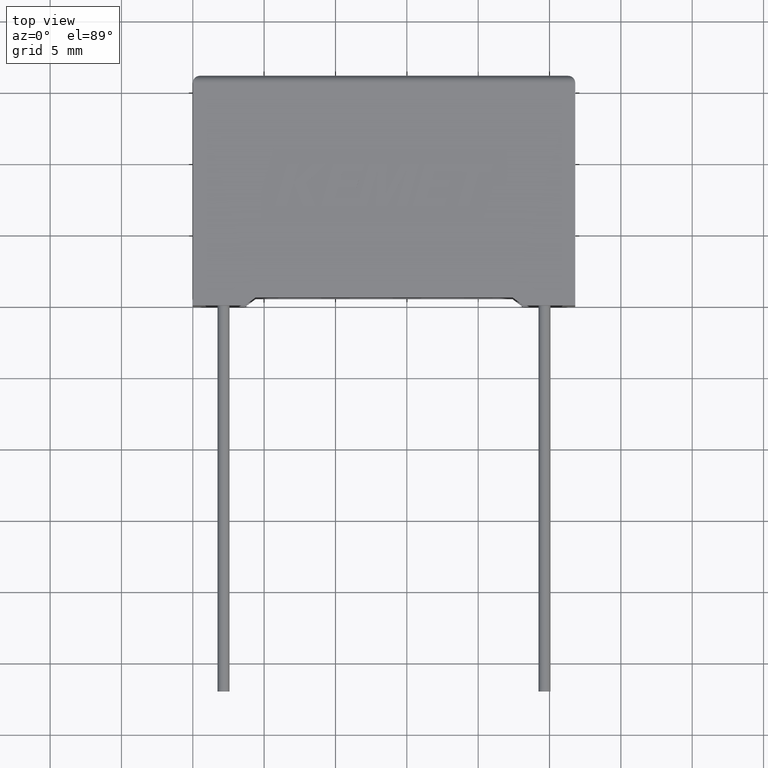
[diagram: clean part render]
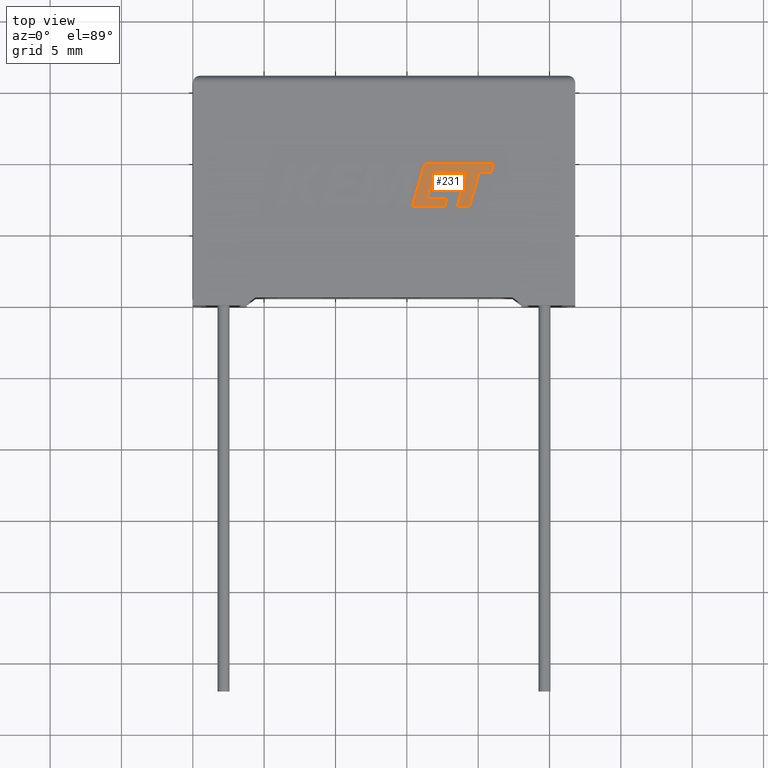
[diagram: same view with one face highlighted and labeled with its STEP entity id]
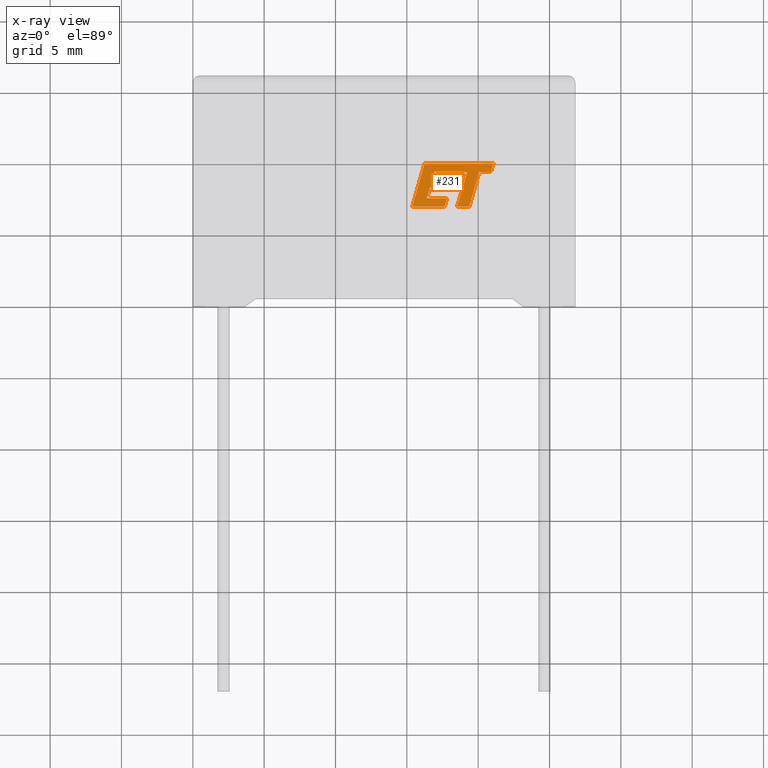
[diagram: x-ray of the same camera — body ghosted, the highlighted face saturated]
A machine part, top view. The second image highlights one B-rep face of the part: STEP entity #231.
The next image is the same camera in x-ray: the body ghosted, the highlighted face saturated — about 0% of this face is hidden behind the body in this view.
In plain terms, the highlighted planar face has unit normal (0, 0, 1).
Its self-contained STEP definition (entity closure, byte-faithful):
#11 = DIRECTION ( 'NONE',  ( 0.2746918797667270400, 0.9615323037684286900, 0.0000000000000000000 ) ) ;
#12 = ORIENTED_EDGE ( 'NONE', *, *, #1254, .T. ) ;
#34 = VECTOR ( 'NONE', #631, 1000.000000000000100 ) ;
#111 = LINE ( 'NONE', #1845, #2291 ) ;
#112 = VERTEX_POINT ( 'NONE', #1918 ) ;
#122 = EDGE_CURVE ( 'NONE', #112, #710, #2945, .T. ) ;
#148 = ORIENTED_EDGE ( 'NONE', *, *, #2126, .T. ) ;
#152 = CARTESIAN_POINT ( 'NONE',  ( 20.07720000853358400, 9.350058697634773700, 7.204999999999999200 ) ) ;
#169 = CARTESIAN_POINT ( 'NONE',  ( 17.65131123836012600, 6.927829999999908700, 7.204999999999999200 ) ) ;
#172 = FACE_OUTER_BOUND ( 'NONE', #2334, .T. ) ;
#231 = ADVANCED_FACE ( 'NONE', ( #172 ), #2001, .T. ) ;
#372 = VERTEX_POINT ( 'NONE', #1008 ) ;
#386 = CARTESIAN_POINT ( 'NONE',  ( 18.05985200241929800, 8.799833879061310400, 7.204999999999999200 ) ) ;
#513 = EDGE_CURVE ( 'NONE', #676, #1346, #806, .T. ) ;
#626 = DIRECTION ( 'NONE',  ( -0.2764273280489764600, -0.9610348236706636200, 0.0000000000000000000 ) ) ;
#631 = DIRECTION ( 'NONE',  ( -0.2763173343569616000, -0.9610664548999008300, 0.0000000000000000000 ) ) ;
#643 = ORIENTED_EDGE ( 'NONE', *, *, #2026, .T. ) ;
#660 = LINE ( 'NONE', #2228, #2625 ) ;
#676 = VERTEX_POINT ( 'NONE', #795 ) ;
#688 = CARTESIAN_POINT ( 'NONE',  ( 17.90134621804373400, 8.244999742206992700, 7.204999999999999200 ) ) ;
#698 = LINE ( 'NONE', #2020, #34 ) ;
#710 = VERTEX_POINT ( 'NONE', #1745 ) ;
#715 = ORIENTED_EDGE ( 'NONE', *, *, #2324, .T. ) ;
#759 = ORIENTED_EDGE ( 'NONE', *, *, #2339, .T. ) ;
#789 = ORIENTED_EDGE ( 'NONE', *, *, #1640, .T. ) ;
#795 = CARTESIAN_POINT ( 'NONE',  ( 17.65131123836012600, 6.927829999999908700, 7.204999999999999200 ) ) ;
#802 = VECTOR ( 'NONE', #626, 1000.000000000000100 ) ;
#806 = LINE ( 'NONE', #169, #2829 ) ;
#868 = ORIENTED_EDGE ( 'NONE', *, *, #2241, .T. ) ;
#886 = LINE ( 'NONE', #2006, #2450 ) ;
#900 = ORIENTED_EDGE ( 'NONE', *, *, #1847, .T. ) ;
#948 = LINE ( 'NONE', #2049, #802 ) ;
#953 = CARTESIAN_POINT ( 'NONE',  ( 19.38098302013320100, 6.927829999999908700, 7.204999999999999200 ) ) ;
#964 = CARTESIAN_POINT ( 'NONE',  ( 16.61331101825768600, 8.244999742206992700, 7.204999999999999200 ) ) ;
#1000 = VECTOR ( 'NONE', #1941, 1000.000000000000000 ) ;
#1008 = CARTESIAN_POINT ( 'NONE',  ( 20.89907209255935100, 9.349993450466376600, 7.204999999999999200 ) ) ;
#1014 = ORIENTED_EDGE ( 'NONE', *, *, #2070, .T. ) ;
#1018 = LINE ( 'NONE', #1835, #1539 ) ;
#1059 = LINE ( 'NONE', #1612, #1609 ) ;
#1117 = VERTEX_POINT ( 'NONE', #2014 ) ;
#1132 = ORIENTED_EDGE ( 'NONE', *, *, #3005, .T. ) ;
#1173 = VECTOR ( 'NONE', #2109, 1000.000000000000200 ) ;
#1192 = ORIENTED_EDGE ( 'NONE', *, *, #1407, .T. ) ;
#1202 = CARTESIAN_POINT ( 'NONE',  ( 20.07720000853358400, 9.350058697634773700, 7.204999999999999200 ) ) ;
#1236 = CARTESIAN_POINT ( 'NONE',  ( 18.52587689811365800, 6.927829999999908700, 7.204999999999999200 ) ) ;
#1239 = VERTEX_POINT ( 'NONE', #1355 ) ;
#1254 = EDGE_CURVE ( 'NONE', #1404, #2571, #1059, .T. ) ;
#1308 = EDGE_CURVE ( 'NONE', #1117, #1404, #1018, .T. ) ;
#1309 = CARTESIAN_POINT ( 'NONE',  ( -0.3258226722601034200, -2.788102867824073800, 7.204999999999998300 ) ) ;
#1324 = VECTOR ( 'NONE', #2616, 1000.000000000000000 ) ;
#1346 = VERTEX_POINT ( 'NONE', #2146 ) ;
#1355 = CARTESIAN_POINT ( 'NONE',  ( 21.06565690514807400, 9.929655370087539600, 7.204999999999999200 ) ) ;
#1402 = VERTEX_POINT ( 'NONE', #953 ) ;
#1404 = VERTEX_POINT ( 'NONE', #2608 ) ;
#1407 = EDGE_CURVE ( 'NONE', #1530, #2967, #1502, .T. ) ;
#1424 = EDGE_CURVE ( 'NONE', #372, #1239, #2585, .T. ) ;
#1462 = LINE ( 'NONE', #2651, #2242 ) ;
#1465 = VECTOR ( 'NONE', #11, 1000.000000000000200 ) ;
#1502 = LINE ( 'NONE', #688, #1465 ) ;
#1510 = DIRECTION ( 'NONE',  ( -1.000000000000000000, 0.0000000000000000000, 0.0000000000000000000 ) ) ;
#1530 = VERTEX_POINT ( 'NONE', #3041 ) ;
#1539 = VECTOR ( 'NONE', #1854, 1000.000000000000200 ) ;
#1609 = VECTOR ( 'NONE', #2777, 999.9999999999998900 ) ;
#1612 = CARTESIAN_POINT ( 'NONE',  ( 16.93410131525536500, 9.358172923274562300, 7.204999999999999200 ) ) ;
#1640 = EDGE_CURVE ( 'NONE', #1239, #2293, #886, .T. ) ;
#1661 = ORIENTED_EDGE ( 'NONE', *, *, #1308, .T. ) ;
#1688 = VECTOR ( 'NONE', #1818, 1000.000000000000000 ) ;
#1694 = DIRECTION ( 'NONE',  ( 0.2745159998572630500, 0.9615825319869153500, 0.0000000000000000000 ) ) ;
#1745 = CARTESIAN_POINT ( 'NONE',  ( 16.61331101825768600, 8.244999742206992700, 7.204999999999999200 ) ) ;
#1750 = ORIENTED_EDGE ( 'NONE', *, *, #513, .T. ) ;
#1759 = CARTESIAN_POINT ( 'NONE',  ( 15.38334410133418800, 6.927829999999906900, 7.204999999999999200 ) ) ;
#1786 = EDGE_CURVE ( 'NONE', #2883, #2970, #698, .T. ) ;
#1818 = DIRECTION ( 'NONE',  ( -1.000000000000000000, 0.0000000000000000000, 0.0000000000000000000 ) ) ;
#1835 = CARTESIAN_POINT ( 'NONE',  ( 16.77163425537493100, 8.799833879061310400, 7.204999999999999200 ) ) ;
#1845 = CARTESIAN_POINT ( 'NONE',  ( 18.30970443484510200, 9.354302921397765800, 7.204999999999999200 ) ) ;
#1847 = EDGE_CURVE ( 'NONE', #2239, #372, #1947, .T. ) ;
#1854 = DIRECTION ( 'NONE',  ( 0.2793947940814923700, 0.9601763114346033600, 0.0000000000000000000 ) ) ;
#1871 = DIRECTION ( 'NONE',  ( 0.2729786930694847500, 0.9620200793798827600, 0.0000000000000000000 ) ) ;
#1918 = CARTESIAN_POINT ( 'NONE',  ( 16.40035138673349700, 7.499038625920482200, 7.204999999999999200 ) ) ;
#1941 = DIRECTION ( 'NONE',  ( 1.000000000000000000, 1.002616505299178600E-015, 0.0000000000000000000 ) ) ;
#1947 = LINE ( 'NONE', #152, #2788 ) ;
#2001 = PLANE ( 'NONE',  #2815 ) ;
#2006 = CARTESIAN_POINT ( 'NONE',  ( 21.06565690514807400, 9.929655370087539600, 7.204999999999999200 ) ) ;
#2014 = CARTESIAN_POINT ( 'NONE',  ( 16.77163425537493100, 8.799833879061310400, 7.204999999999999200 ) ) ;
#2018 = ORIENTED_EDGE ( 'NONE', *, *, #2966, .T. ) ;
#2020 = CARTESIAN_POINT ( 'NONE',  ( 19.22229468849963000, 9.350058697642236200, 7.204999999999999200 ) ) ;
#2026 = EDGE_CURVE ( 'NONE', #710, #1530, #2117, .T. ) ;
#2033 = CARTESIAN_POINT ( 'NONE',  ( 18.52587689811365800, 6.927829999999908700, 7.204999999999999200 ) ) ;
#2049 = CARTESIAN_POINT ( 'NONE',  ( 16.24677438074236600, 9.929655370087539600, 7.204999999999999200 ) ) ;
#2065 = DIRECTION ( 'NONE',  ( 0.9999999968487352000, -7.938847109813994200E-005, 0.0000000000000000000 ) ) ;
#2070 = EDGE_CURVE ( 'NONE', #2970, #1402, #2949, .T. ) ;
#2079 = ORIENTED_EDGE ( 'NONE', *, *, #1424, .T. ) ;
#2109 = DIRECTION ( 'NONE',  ( 0.2762033010290175800, 0.9610992334304890900, 0.0000000000000000000 ) ) ;
#2115 = VECTOR ( 'NONE', #2681, 1000.000000000000000 ) ;
#2117 = LINE ( 'NONE', #964, #1000 ) ;
#2118 = VERTEX_POINT ( 'NONE', #1759 ) ;
#2126 = EDGE_CURVE ( 'NONE', #2118, #676, #660, .T. ) ;
#2146 = CARTESIAN_POINT ( 'NONE',  ( 17.81339494899777200, 7.499038625920482200, 7.204999999999999200 ) ) ;
#2228 = CARTESIAN_POINT ( 'NONE',  ( 15.38334410133418800, 6.927829999999906900, 7.204999999999999200 ) ) ;
#2239 = VERTEX_POINT ( 'NONE', #1202 ) ;
#2241 = EDGE_CURVE ( 'NONE', #1346, #112, #2401, .T. ) ;
#2242 = VECTOR ( 'NONE', #3032, 1000.000000000000100 ) ;
#2246 = DIRECTION ( 'NONE',  ( 1.000000000000000000, 5.694109626320596000E-016, 0.0000000000000000000 ) ) ;
#2291 = VECTOR ( 'NONE', #3016, 1000.000000000000200 ) ;
#2293 = VERTEX_POINT ( 'NONE', #2512 ) ;
#2324 = EDGE_CURVE ( 'NONE', #2571, #2883, #111, .T. ) ;
#2334 = EDGE_LOOP ( 'NONE', ( #12, #715, #2827, #1014, #2018, #900, #2079, #789, #1132, #148, #1750, #868, #2897, #643, #1192, #759, #1661 ) ) ;
#2339 = EDGE_CURVE ( 'NONE', #2967, #1117, #2357, .T. ) ;
#2346 = CARTESIAN_POINT ( 'NONE',  ( 19.22229468849963000, 9.350058697642236200, 7.204999999999999200 ) ) ;
#2353 = CARTESIAN_POINT ( 'NONE',  ( 18.30970443484510200, 9.354302921397765800, 7.204999999999999200 ) ) ;
#2357 = LINE ( 'NONE', #386, #1688 ) ;
#2401 = LINE ( 'NONE', #2853, #1324 ) ;
#2450 = VECTOR ( 'NONE', #1510, 1000.000000000000000 ) ;
#2512 = CARTESIAN_POINT ( 'NONE',  ( 16.24677438074236600, 9.929655370087539600, 7.204999999999999200 ) ) ;
#2571 = VERTEX_POINT ( 'NONE', #2353 ) ;
#2585 = LINE ( 'NONE', #3035, #1173 ) ;
#2608 = CARTESIAN_POINT ( 'NONE',  ( 16.93410131525536500, 9.358172923274562300, 7.204999999999999200 ) ) ;
#2616 = DIRECTION ( 'NONE',  ( -1.000000000000000000, 0.0000000000000000000, 0.0000000000000000000 ) ) ;
#2625 = VECTOR ( 'NONE', #2246, 1000.000000000000000 ) ;
#2651 = CARTESIAN_POINT ( 'NONE',  ( 19.38098302013320100, 6.927829999999908700, 7.204999999999999200 ) ) ;
#2681 = DIRECTION ( 'NONE',  ( 1.000000000000000000, 0.0000000000000000000, 0.0000000000000000000 ) ) ;
#2777 = DIRECTION ( 'NONE',  ( 0.9999960426590096500, -0.002813301676021314700, 0.0000000000000000000 ) ) ;
#2788 = VECTOR ( 'NONE', #2065, 1000.000000000000200 ) ;
#2815 = AXIS2_PLACEMENT_3D ( 'NONE', #1309, #2959, #2948 ) ;
#2827 = ORIENTED_EDGE ( 'NONE', *, *, #1786, .T. ) ;
#2829 = VECTOR ( 'NONE', #1871, 1000.000000000000100 ) ;
#2835 = VECTOR ( 'NONE', #1694, 1000.000000000000000 ) ;
#2843 = CARTESIAN_POINT ( 'NONE',  ( 16.40035138673349700, 7.499038625920482200, 7.204999999999999200 ) ) ;
#2853 = CARTESIAN_POINT ( 'NONE',  ( 17.81339494899777200, 7.499038625920482200, 7.204999999999999200 ) ) ;
#2883 = VERTEX_POINT ( 'NONE', #2346 ) ;
#2897 = ORIENTED_EDGE ( 'NONE', *, *, #122, .T. ) ;
#2927 = CARTESIAN_POINT ( 'NONE',  ( 18.05985200241929800, 8.799833879061310400, 7.204999999999999200 ) ) ;
#2945 = LINE ( 'NONE', #2843, #2835 ) ;
#2948 = DIRECTION ( 'NONE',  ( 1.000000000000000000, 0.0000000000000000000, 0.0000000000000000000 ) ) ;
#2949 = LINE ( 'NONE', #1236, #2115 ) ;
#2959 = DIRECTION ( 'NONE',  ( 0.0000000000000000000, 0.0000000000000000000, 1.000000000000000000 ) ) ;
#2966 = EDGE_CURVE ( 'NONE', #1402, #2239, #1462, .T. ) ;
#2967 = VERTEX_POINT ( 'NONE', #2927 ) ;
#2970 = VERTEX_POINT ( 'NONE', #2033 ) ;
#3005 = EDGE_CURVE ( 'NONE', #2293, #2118, #948, .T. ) ;
#3016 = DIRECTION ( 'NONE',  ( 0.9999891854650020400, -0.004650693823678667000, 0.0000000000000000000 ) ) ;
#3032 = DIRECTION ( 'NONE',  ( 0.2762437428917223800, 0.9610876102172850600, 0.0000000000000000000 ) ) ;
#3035 = CARTESIAN_POINT ( 'NONE',  ( 20.89907209255935100, 9.349993450466376600, 7.204999999999999200 ) ) ;
#3041 = CARTESIAN_POINT ( 'NONE',  ( 17.90134621804373400, 8.244999742206992700, 7.204999999999999200 ) ) ;